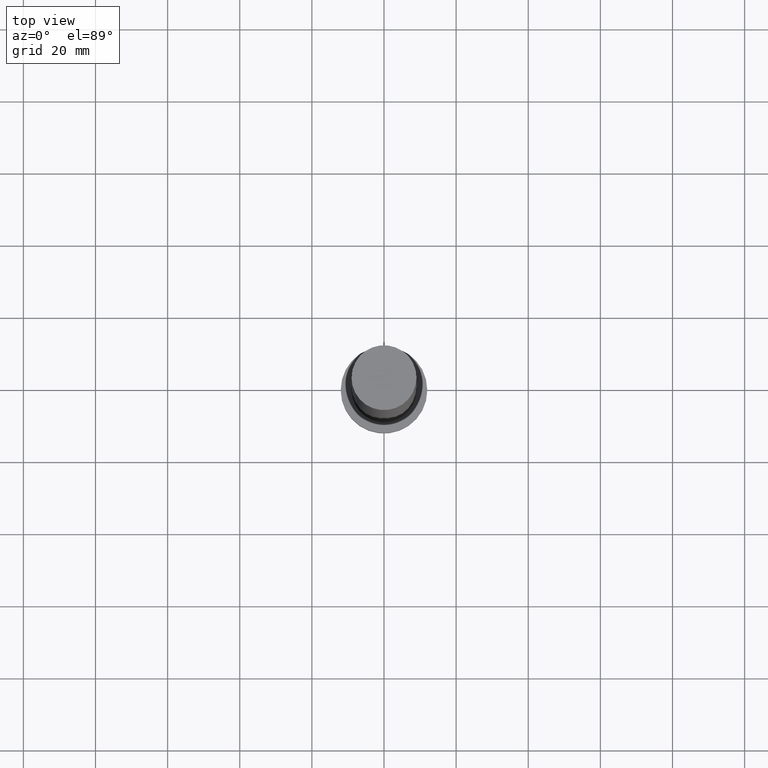
[diagram: clean part render]
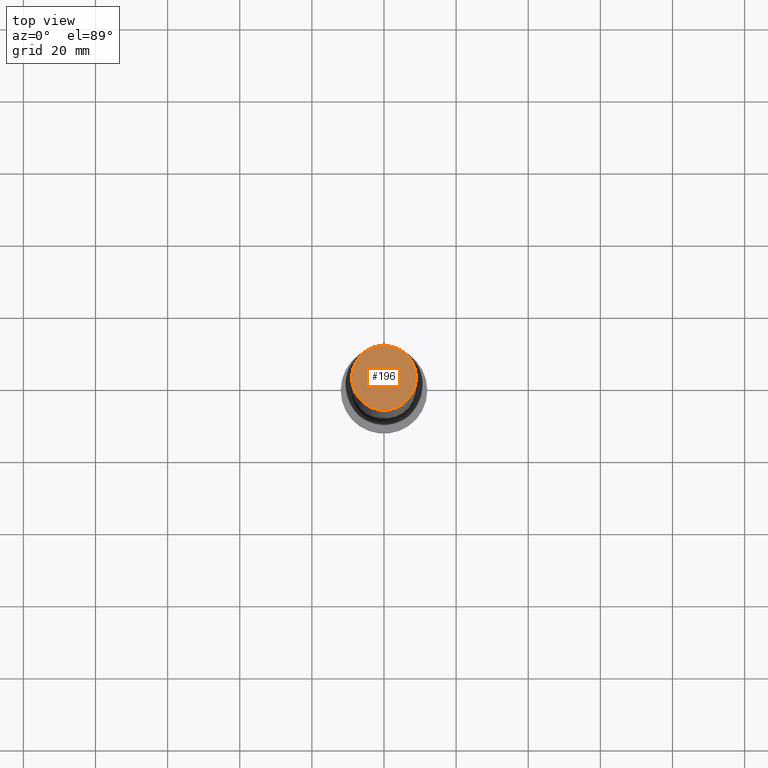
[diagram: same view with one face highlighted and labeled with its STEP entity id]
A machine part, top view. The second image highlights one B-rep face of the part: STEP entity #196.
In plain terms, the highlighted planar face has unit normal (0, 0, 1).
Its self-contained STEP definition (entity closure, byte-faithful):
#2 = EDGE_CURVE ( 'NONE', #90, #34, #212, .T. ) ;
#11 = DIRECTION ( 'NONE',  ( 1.000000000000000000, 0.000000000000000000, -0.000000000000000000 ) ) ;
#34 = VERTEX_POINT ( 'NONE', #239 ) ;
#42 = CARTESIAN_POINT ( 'NONE',  ( 9.000000000000001776, 1.102182119232617911E-15, 200.0000000000000000 ) ) ;
#43 = CIRCLE ( 'NONE', #66, 9.000000000000001776 ) ;
#44 = CARTESIAN_POINT ( 'NONE',  ( 0.000000000000000000, 0.000000000000000000, 200.0000000000000000 ) ) ;
#45 = DIRECTION ( 'NONE',  ( 1.000000000000000000, 0.000000000000000000, 0.000000000000000000 ) ) ;
#46 = FACE_OUTER_BOUND ( 'NONE', #73, .T. ) ;
#48 = CARTESIAN_POINT ( 'NONE',  ( 0.000000000000000000, 0.000000000000000000, 200.0000000000000000 ) ) ;
#66 = AXIS2_PLACEMENT_3D ( 'NONE', #48, #108, #141 ) ;
#70 = ORIENTED_EDGE ( 'NONE', *, *, #2, .T. ) ;
#73 = EDGE_LOOP ( 'NONE', ( #166, #70 ) ) ;
#90 = VERTEX_POINT ( 'NONE', #42 ) ;
#108 = DIRECTION ( 'NONE',  ( 0.000000000000000000, 0.000000000000000000, 1.000000000000000000 ) ) ;
#139 = DIRECTION ( 'NONE',  ( 0.000000000000000000, 0.000000000000000000, 1.000000000000000000 ) ) ;
#141 = DIRECTION ( 'NONE',  ( 1.000000000000000000, 0.000000000000000000, 0.000000000000000000 ) ) ;
#142 = DIRECTION ( 'NONE',  ( 0.000000000000000000, 0.000000000000000000, 1.000000000000000000 ) ) ;
#154 = EDGE_CURVE ( 'NONE', #34, #90, #43, .T. ) ;
#166 = ORIENTED_EDGE ( 'NONE', *, *, #154, .T. ) ;
#196 = ADVANCED_FACE ( 'NONE', ( #46 ), #200, .T. ) ;
#200 = PLANE ( 'NONE',  #247 ) ;
#212 = CIRCLE ( 'NONE', #215, 9.000000000000001776 ) ;
#215 = AXIS2_PLACEMENT_3D ( 'NONE', #44, #139, #45 ) ;
#239 = CARTESIAN_POINT ( 'NONE',  ( -9.000000000000001776, 0.000000000000000000, 200.0000000000000000 ) ) ;
#240 = CARTESIAN_POINT ( 'NONE',  ( 0.000000000000000000, 0.000000000000000000, 200.0000000000000000 ) ) ;
#247 = AXIS2_PLACEMENT_3D ( 'NONE', #240, #142, #11 ) ;